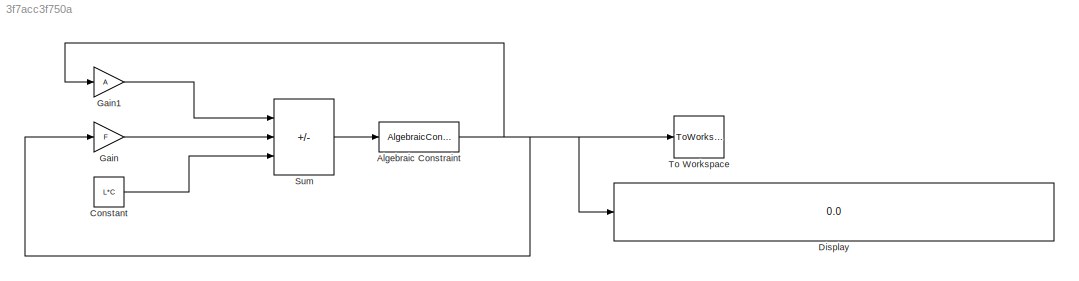
MODEL slx_3f7acc3f750a
KIND model
CONFIG AbsTol = auto
CONFIG EnableMultiTasking = off
CONFIG FixedStep = auto
CONFIG MaxStep = auto
CONFIG MinStep = auto
CONFIG RelTol = 1e-3
CONFIG SampleTimeConstraint = Unconstrained
CONFIG SolverName = VariableStepAuto
CONFIG StartTime = 0.0
CONFIG StopTime = 10.0
BLOCK [AlgebraicConstraint] Algebraic Constraint
BLOCK [Constant] Constant
  Value = L*C
BLOCK [Display] Display
  Decimation = 1
  Ports = [1]
BLOCK [Gain] Gain
  Gain = F
  Multiplication = Matrix(K*u)
BLOCK [Gain] Gain1
  Gain = A
  Multiplication = Matrix(u*K)
BLOCK [Sum] Sum
  IconShape = rectangular
  Inputs = +--
  Ports = [3, 1]
BLOCK [ToWorkspace] To Workspace
  MaxDataPoints = 3
  Ports = [1]
  SampleTime = -1
  Save2DSignal = 2-D array (concatenate along first dimension)
  VariableName = T
NET Algebraic Constraint:1 -> Display:1, Gain1:1, Gain:1, To Workspace:1
LINE Constant:1 -> Sum:3
LINE Gain1:1 -> Sum:1
LINE Gain:1 -> Sum:2
LINE Sum:1 -> Algebraic Constraint:1
note: NET lines group one-source signal fan-out (src -> all destinations, sorted); 1:1 wires keep LINE
